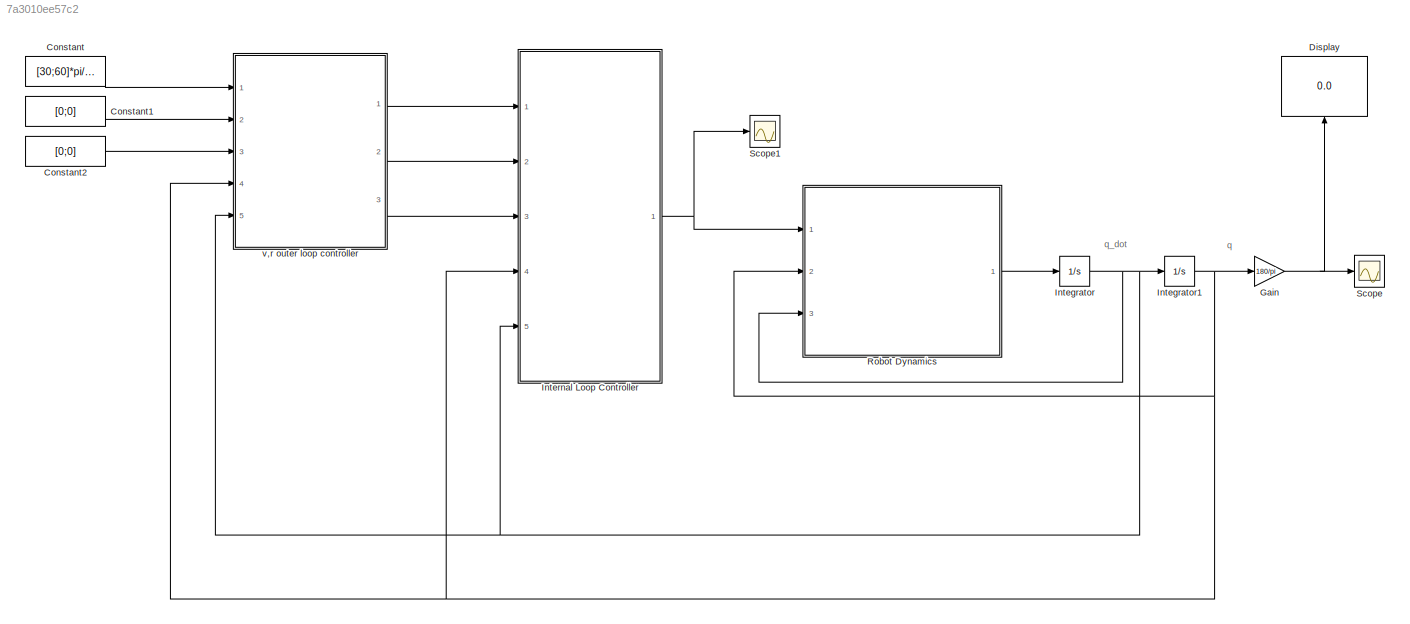
MODEL slx_7a3010ee57c2
KIND model
CONFIG AbsTol = auto
CONFIG EnableMultiTasking = off
CONFIG FixedStep = .001
CONFIG MaxStep = .1
CONFIG MinStep = auto
CONFIG RelTol = 1e-3
CONFIG SampleTimeConstraint = Unconstrained
CONFIG Solver = VariableStepAuto
CONFIG SolverName = VariableStepAuto
CONFIG StartTime = 0.0
CONFIG StopTime = 10
BLOCK [Constant] Constant
  Value = [30;60]*pi/180
BLOCK [Constant] Constant1
  Value = [0;0]
BLOCK [Constant] Constant2
  Value = [0;0]
BLOCK [Display] Display
  Decimation = 1
  Ports = [1]
BLOCK [Gain] Gain
  Gain = 180/pi
  OutDataTypeStr = Inherit: Inherit via internal rule
  ParamDataTypeStr = Inherit: Inherit via internal rule
  SaturateOnIntegerOverflow = off
BLOCK [Integrator] Integrator
  InitialCondition = zeros(2,1)
  Ports = [1, 1]
BLOCK [Integrator] Integrator1
  InitialCondition = [45;95]*pi/180*0
  Ports = [1, 1]
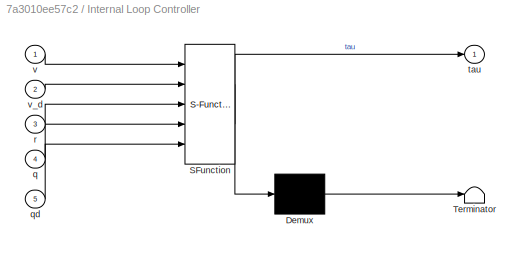
BLOCK [SubSystem] Internal Loop Controller
  ErrorFcn = Stateflow.Translate.translate
  PermitHierarchicalResolution = ExplicitOnly
  Ports = [5, 1]
  RequestExecContextInheritance = off
  SFBlockType = MATLAB Function
  TreatAsAtomicUnit = on
BLOCK [Demux] Internal Loop Controller/ Demux 
  DisplayOption = bar
  Outputs = 1
  Ports = [1, 1]
BLOCK [S-Function] Internal Loop Controller/ SFunction 
  EnableBusSupport = on
  FunctionName = sf_sfun
  PortCounts = [5 2]
  Ports = [5, 2]
  SFcnIsStateOwnerBlock = off
  SFunctionDeploymentMode = off
  Tag = Stateflow S-Function 1
BLOCK [Terminator] Internal Loop Controller/ Terminator 
BLOCK [Inport] Internal Loop Controller/q
  IconDisplay = Port number
  Port = 4
BLOCK [Inport] Internal Loop Controller/qd
  IconDisplay = Port number
  Port = 5
BLOCK [Inport] Internal Loop Controller/r
  IconDisplay = Port number
  Port = 3
BLOCK [Outport] Internal Loop Controller/tau
  IconDisplay = Port number
BLOCK [Inport] Internal Loop Controller/v
  IconDisplay = Port number
BLOCK [Inport] Internal Loop Controller/v_d
  IconDisplay = Port number
  Port = 2
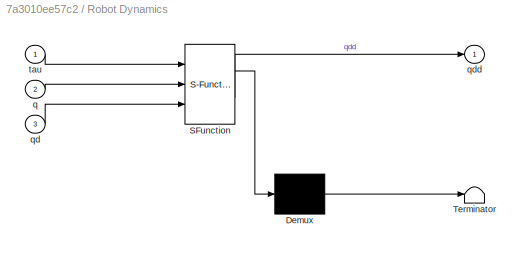
BLOCK [SubSystem] Robot Dynamics
  ErrorFcn = Stateflow.Translate.translate
  PermitHierarchicalResolution = ExplicitOnly
  Ports = [3, 1]
  RequestExecContextInheritance = off
  SFBlockType = MATLAB Function
  TreatAsAtomicUnit = on
BLOCK [Demux] Robot Dynamics/ Demux 
  DisplayOption = bar
  Outputs = 1
  Ports = [1, 1]
BLOCK [S-Function] Robot Dynamics/ SFunction 
  EnableBusSupport = on
  FunctionName = sf_sfun
  PortCounts = [3 2]
  Ports = [3, 2]
  SFcnIsStateOwnerBlock = off
  SFunctionDeploymentMode = off
  Tag = Stateflow S-Function 2
BLOCK [Terminator] Robot Dynamics/ Terminator 
BLOCK [Inport] Robot Dynamics/q
  IconDisplay = Port number
  Port = 2
BLOCK [Inport] Robot Dynamics/qd
  IconDisplay = Port number
  Port = 3
BLOCK [Outport] Robot Dynamics/qdd
  IconDisplay = Port number
BLOCK [Inport] Robot Dynamics/tau
  IconDisplay = Port number
BLOCK [Scope] Scope
  Floating = off
  NumInputPorts = 1
  Ports = [1]
  ScopeSpecificationString = Simulink.scopes.TimeScopeBlockCfg('CurrentConfiguration', extmgr.ConfigurationSet(extmgr.Configuration('Core','General UI',true,'FigureColor',[1 1 1]),extmgr.Configuration('Core','Source UI',true),extmgr.Configuration('Sources','WiredSimulink',true),extmgr.Configuration('Visuals','Time Domain',true,'SerializedDisplays',{struct('MinYLimReal','-10.62119','MaxYLimReal','67.85229','YLabelReal','q(t)',...<+1762ch>
BLOCK [Scope] Scope1
  Floating = off
  NumInputPorts = 1
  Ports = [1]
  ScopeSpecificationString = Simulink.scopes.TimeScopeBlockCfg('CurrentConfiguration', extmgr.ConfigurationSet(extmgr.Configuration('Core','General UI',true,'FigureColor',[1 1 1]),extmgr.Configuration('Core','Source UI',true),extmgr.Configuration('Sources','WiredSimulink',true,'DataLoggingVariableName','ScopeData1'),extmgr.Configuration('Visuals','Time Domain',true,'SerializedDisplays',{struct('MinYLimReal','-212.40847','MaxY...<+1927ch>
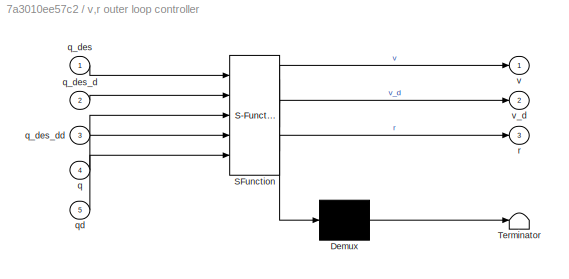
BLOCK [SubSystem] v,r outer loop controller
  ErrorFcn = Stateflow.Translate.translate
  PermitHierarchicalResolution = ExplicitOnly
  Ports = [5, 3]
  RequestExecContextInheritance = off
  SFBlockType = MATLAB Function
  TreatAsAtomicUnit = on
BLOCK [Demux] v,r outer loop controller/ Demux 
  DisplayOption = bar
  Outputs = 1
  Ports = [1, 1]
BLOCK [S-Function] v,r outer loop controller/ SFunction 
  EnableBusSupport = on
  FunctionName = sf_sfun
  PortCounts = [5 4]
  Ports = [5, 4]
  SFcnIsStateOwnerBlock = off
  SFunctionDeploymentMode = off
  Tag = Stateflow S-Function 4
BLOCK [Terminator] v,r outer loop controller/ Terminator 
BLOCK [Inport] v,r outer loop controller/q
  IconDisplay = Port number
  Port = 4
BLOCK [Inport] v,r outer loop controller/q_des
  IconDisplay = Port number
BLOCK [Inport] v,r outer loop controller/q_des_d
  IconDisplay = Port number
  Port = 2
BLOCK [Inport] v,r outer loop controller/q_des_dd
  IconDisplay = Port number
  Port = 3
BLOCK [Inport] v,r outer loop controller/qd
  IconDisplay = Port number
  Port = 5
BLOCK [Outport] v,r outer loop controller/r
  IconDisplay = Port number
  Port = 3
BLOCK [Outport] v,r outer loop controller/v
  IconDisplay = Port number
BLOCK [Outport] v,r outer loop controller/v_d
  IconDisplay = Port number
  Port = 2
ANNOTATION (root): q
ANNOTATION (root): q_dot
LINE Constant1:1 -> v,r outer loop controller:2
LINE Constant2:1 -> v,r outer loop controller:3
LINE Constant:1 -> v,r outer loop controller:1
NET Gain:1 -> Display:1, Scope:1
NET Integrator1:1 -> Gain:1, Internal Loop Controller:4, Robot Dynamics:2, v,r outer loop controller:4
NET Integrator:1 -> Integrator1:1, Internal Loop Controller:5, Robot Dynamics:3, v,r outer loop controller:5
NET Internal Loop Controller:1 -> Robot Dynamics:1, Scope1:1
LINE Robot Dynamics:1 -> Integrator:1
LINE v,r outer loop controller:1 -> Internal Loop Controller:1
LINE v,r outer loop controller:2 -> Internal Loop Controller:2
LINE v,r outer loop controller:3 -> Internal Loop Controller:3
note: NET lines group one-source signal fan-out (src -> all destinations, sorted); 1:1 wires keep LINE
CHART Internal Loop Controller states=1 transitions=1
  STATE_LABEL 'eML_blk_kernel()'
  STATE_LABEL 'SCRIPT:\nfunction tau = fcn(v,v_d,r,q,qd)\n\nq1=q(1);\nq2=q(2);\n\nq1d=qd(1);\nq2d=qd(2);\n\n\n\n\nm1=2;\nm2=1.4;\n\nI1=.5;\nI2=.1;\n\nl1=.8;\nl2=.8;\n\nlc1=.4;\nlc2=.4;\n\n\ng=9.81;\n\n\n\nd11=m1*lc1^2+I1+I2+m2*(l1^2+lc2^2+2*l1*lc2*cos(q2));\nd12=m2*lc2^2+I2+m2*l2*lc2*cos(q2);\nd21=m2*lc2^2+I2+m2*l2*lc2*cos(q2);\nd22=m2*lc2^2+I2;\n\nc11=-m2*l1*lc2*sin(q2)*q2d;\nc12=-m2*l1*lc2*sin(q2)*(q1d+q2d);\nc21=m2*l1*lc2*sin(q2)*q1d;\nc22=0;\n\ng...<+169ch>'
CHART Robot Dynamics states=1 transitions=1
  STATE_LABEL 'eML_blk_kernel()'
  STATE_LABEL 'SCRIPT:\nfunction qdd = fcn(tau,q,qd)\n\nq1=q(1);\nq2=q(2);\n\nq1d=qd(1);\nq2d=qd(2);\n\n\n\n\nm1=2;\nm2=1.4;\n\nI1=.5;\nI2=.1;\n\nl1=.8;\nl2=.8;\n\nlc1=.4;\nlc2=.4;\n\n\ng=9.81;\n\n\n\nd11=m1*lc1^2+I1+I2+m2*(l1^2+lc2^2+2*l1*lc2*cos(q2));\nd12=m2*lc2^2+I2+m2*l2*lc2*cos(q2);\nd21=m2*lc2^2+I2+m2*l2*lc2*cos(q2);\nd22=m2*lc2^2+I2;\n\nc11=-m2*l1*lc2*sin(q2)*q2d;\nc12=-m2*l1*lc2*sin(q2)*(q1d+q2d);\nc21=m2*l1*lc2*sin(q2)*q1d;\nc22=0;\n\ng11=m...<+156ch>'
CHART v,r
outer loop controller states=1 transitions=1
  STATE_LABEL 'eML_blk_kernel()'
  STATE_LABEL 'SCRIPT:\nfunction [v,v_d,r]= fcn(q_des,q_des_d,q_des_dd,q,qd)\n\n\nq_tilde=q-q_des;\nq_tilde_d=qd-q_des_d;\n\ngamma=15;\n\n\nv=q_des_d-gamma*q_tilde;\nv_d=q_des_dd-gamma*q_tilde_d;\nr=qd-v;'
